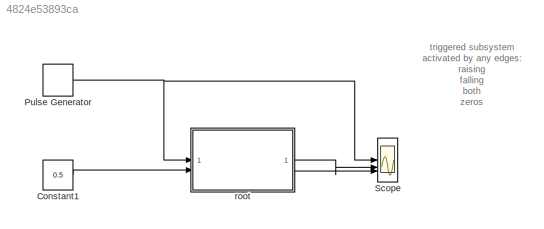
MODEL slx_4824e53893ca
KIND model
CONFIG AbsTol = auto
CONFIG EnableMultiTasking = off
CONFIG FixedStep = 0.5
CONFIG MaxStep = auto
CONFIG MinStep = auto
CONFIG RelTol = 1e-3
CONFIG SampleTimeConstraint = Unconstrained
CONFIG SolverName = FixedStepDiscrete
CONFIG StartTime = 0.0
CONFIG StopTime = 10.0
BLOCK [Constant] Constant1
  Value = 0.5
BLOCK [DiscretePulseGenerator] Pulse Generator
  Period = 1
  PulseType = Time based
  PulseWidth = 50
BLOCK [Scope] Scope
  Floating = off
  NumInputPorts = 3
  ScopeSpecificationString = Simulink.scopes.TimeScopeBlockCfg('CurrentConfiguration', extmgr.ConfigurationSet(extmgr.Configuration('Core','General UI',true),extmgr.Configuration('Core','Source UI',true),extmgr.Configuration('Sources','WiredSimulink',true,'DataLoggingSaveFormat','Array','DataLoggingLimitDataPoints',true,'DataLoggingDecimation','1'),extmgr.Configuration('Visuals','Time Domain',true,'SerializedDisplays',{struct...<+3291ch>
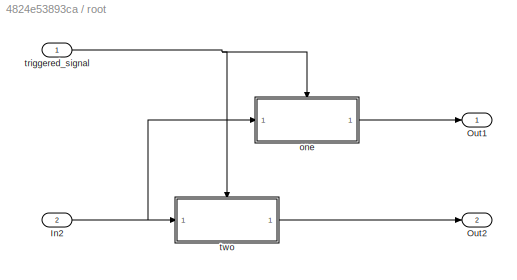
BLOCK [SubSystem] root
  RTWFcnNameOpts = Use subsystem name
  RTWSystemCode = Nonreusable function
  TreatAsAtomicUnit = on
BLOCK [Inport] root/In2
  Port = 2
BLOCK [Outport] root/Out1
BLOCK [Outport] root/Out2
  Port = 2
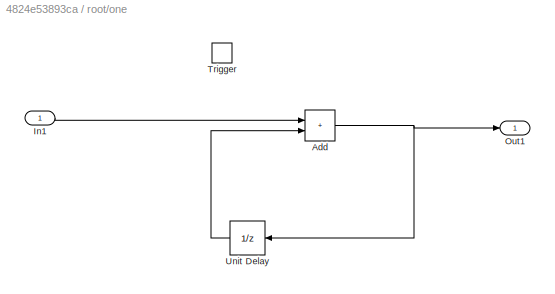
BLOCK [SubSystem] root/one
  RTWSystemCode = Nonreusable function
  TreatAsAtomicUnit = on
BLOCK [Sum] root/one/Add
  IconShape = rectangular
BLOCK [Inport] root/one/In1
BLOCK [Outport] root/one/Out1
BLOCK [TriggerPort] root/one/Trigger
  PortDimensions = 1
  StatesWhenEnabling = held
  VariantControl = (inherit)
BLOCK [UnitDelay] root/one/Unit Delay
  HasFrameUpgradeWarning = on
  NameLocation = top
  SampleTime = -1
BLOCK [Inport] root/triggered_signal
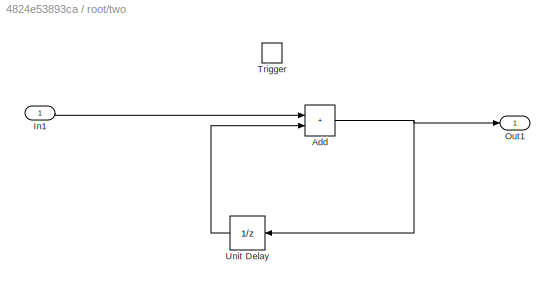
BLOCK [SubSystem] root/two
  RTWSystemCode = Nonreusable function
  TreatAsAtomicUnit = on
BLOCK [Sum] root/two/Add
  IconShape = rectangular
BLOCK [Inport] root/two/In1
BLOCK [Outport] root/two/Out1
BLOCK [TriggerPort] root/two/Trigger
  PortDimensions = 1
  StatesWhenEnabling = held
  TriggerType = falling
  VariantControl = (inherit)
BLOCK [UnitDelay] root/two/Unit Delay
  HasFrameUpgradeWarning = on
  NameLocation = top
  SampleTime = -1
ANNOTATION (root): triggered subsystem activated by any edges: raising falling both zeros even from -1 to 0
LINE Constant1:1 -> root:2
NET Pulse Generator:1 -> Scope:1, root:1
NET root/In2:1 -> root/one:1, root/two:1
NET root/one/Add:1 -> root/one/Out1:1, root/one/Unit Delay:1
LINE root/one/In1:1 -> root/one/Add:1
LINE root/one/Unit Delay:1 -> root/one/Add:2
LINE root/one:1 -> root/Out1:1
NET root/triggered_signal:1 -> root/one:trigger, root/two:trigger
NET root/two/Add:1 -> root/two/Out1:1, root/two/Unit Delay:1
LINE root/two/In1:1 -> root/two/Add:1
LINE root/two/Unit Delay:1 -> root/two/Add:2
LINE root/two:1 -> root/Out2:1
LINE root:1 -> Scope:2
LINE root:2 -> Scope:3
note: NET lines group one-source signal fan-out (src -> all destinations, sorted); 1:1 wires keep LINE
